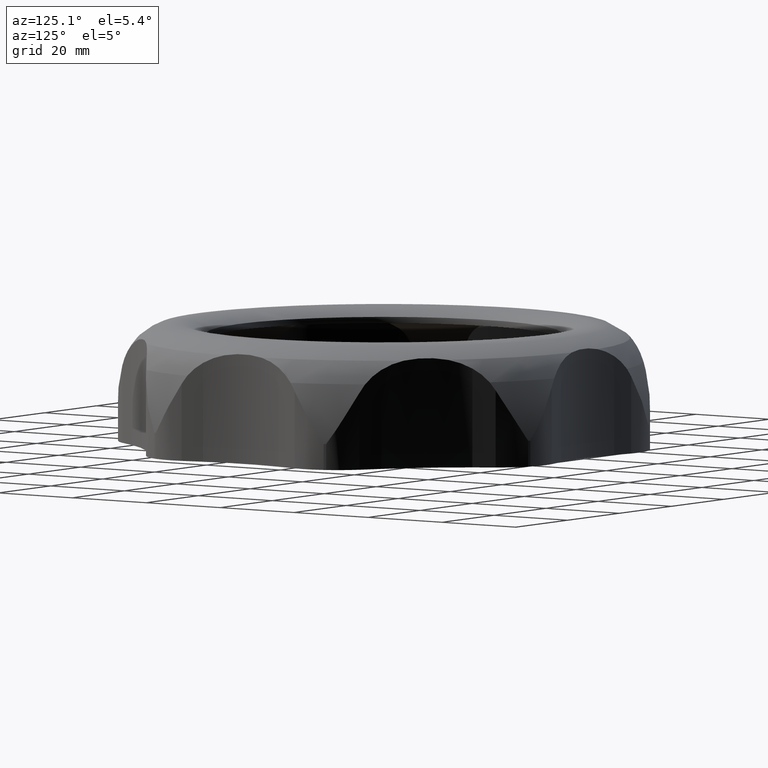
[diagram: clean part render]
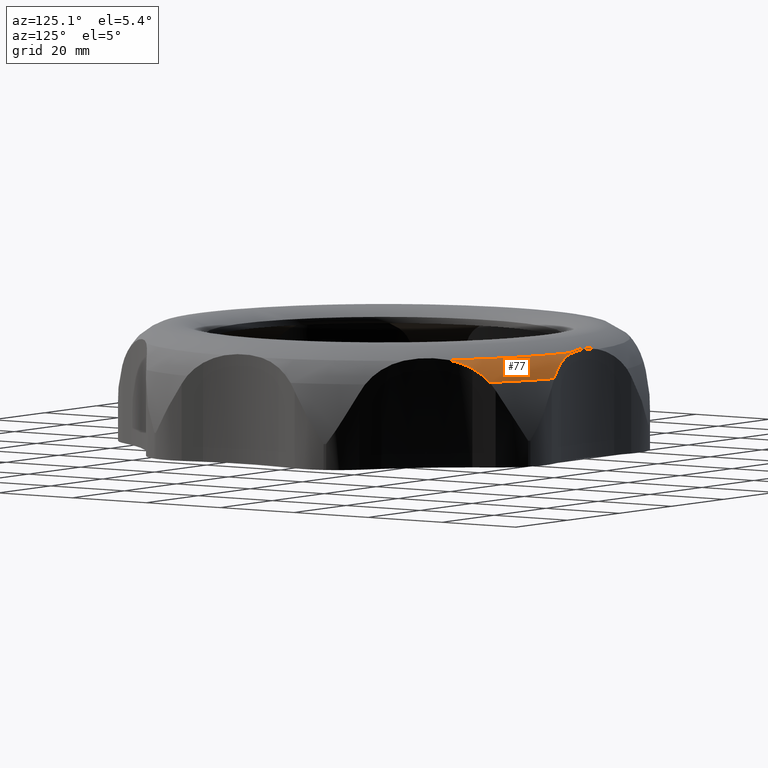
[diagram: same view with one face highlighted and labeled with its STEP entity id]
A machine part, auxiliary view. The second image highlights one B-rep face of the part: STEP entity #77.
In plain terms, the highlighted toroidal blend (fillet) surface has major radius 43.5661 mm and minor (blend) radius 15 mm.
Its self-contained STEP definition (entity closure, byte-faithful):
#77 = ADVANCED_FACE( '', ( #2362 ), #2363, .T. );
#2362 = FACE_OUTER_BOUND( '', #6954, .T. );
#2363 = TOROIDAL_SURFACE( '', #6955, 43.5661318068300, 15.0000000000000 );
#6954 = EDGE_LOOP( '', ( #11979, #11980, #11981, #11982, #11983, #11984 ) );
#6955 = AXIS2_PLACEMENT_3D( '', #11985, #11986, #11987 );
#11979 = ORIENTED_EDGE( '', *, *, #32259, .F. );
#11980 = ORIENTED_EDGE( '', *, *, #32260, .F. );
#11981 = ORIENTED_EDGE( '', *, *, #32261, .T. );
#11982 = ORIENTED_EDGE( '', *, *, #32262, .F. );
#11983 = ORIENTED_EDGE( '', *, *, #32263, .F. );
#11984 = ORIENTED_EDGE( '', *, *, #32256, .F. );
#11985 = CARTESIAN_POINT( '', ( 0.000000000000000, 0.000000000000000, 13.6113464164308 ) );
#11986 = DIRECTION( '', ( 2.34318281388423E-017, -5.65694372839885E-017, 1.00000000000000 ) );
#11987 = DIRECTION( '', ( 0.382683432365090, -0.923879532511287, -6.12303176911189E-017 ) );
#32256 = EDGE_CURVE( '', #39080, #39082, #39083, .T. );
#32259 = EDGE_CURVE( '', #39087, #39080, #39088, .T. );
#32260 = EDGE_CURVE( '', #39089, #39087, #39090, .T. );
#32261 = EDGE_CURVE( '', #39089, #39091, #39092, .T. );
#32262 = EDGE_CURVE( '', #39093, #39091, #39094, .T. );
#32263 = EDGE_CURVE( '', #39082, #39093, #39095, .T. );
#39080 = VERTEX_POINT( '', #50396 );
#39082 = VERTEX_POINT( '', #50407 );
#39083 = CIRCLE( '', #50408, 54.4903069228964 );
#39087 = VERTEX_POINT( '', #50421 );
#39088 = B_SPLINE_CURVE_WITH_KNOTS( '', 3, ( #50422, #50423, #50424, #50425, #50426, #50427 ), .UNSPECIFIED., .F., .F., ( 4, 2, 4 ), ( -0.0157093972413115, -0.0128993333692689, -0.0100892694972263 ), .UNSPECIFIED. );
#39089 = VERTEX_POINT( '', #50428 );
#39090 = B_SPLINE_CURVE_WITH_KNOTS( '', 3, ( #50429, #50430, #50431, #50432, #50433, #50434 ), .UNSPECIFIED., .F., .F., ( 4, 2, 4 ), ( 2.59076700372244E-007, 0.00246112304105133, 0.00492198700540229 ), .UNSPECIFIED. );
#39091 = VERTEX_POINT( '', #50435 );
#39092 = CIRCLE( '', #50436, 57.6009145856352 );
#39093 = VERTEX_POINT( '', #50437 );
#39094 = B_SPLINE_CURVE_WITH_KNOTS( '', 3, ( #50438, #50439, #50440, #50441, #50442, #50443 ), .UNSPECIFIED., .F., .F., ( 4, 2, 4 ), ( 2.31321097570903E-007, 0.00246109528543580, 0.00492195924977404 ), .UNSPECIFIED. );
#39095 = B_SPLINE_CURVE_WITH_KNOTS( '', 3, ( #50444, #50445, #50446, #50447, #50448, #50449 ), .UNSPECIFIED., .F., .F., ( 4, 2, 4 ), ( 9.82227130871184E-007, 0.00280804585765171, 0.00561510948817255 ), .UNSPECIFIED. );
#50396 = CARTESIAN_POINT( '', ( 34.8035685836430, 41.9273796271016, 23.8905680812026 ) );
#50407 = CARTESIAN_POINT( '', ( 5.03729506655510, 54.2569738036059, 23.8905679243228 ) );
#50408 = AXIS2_PLACEMENT_3D( '', #78958, #78959, #78960 );
#50421 = CARTESIAN_POINT( '', ( 31.6942200521727, 46.1907495298074, 21.9737858870486 ) );
#50422 = CARTESIAN_POINT( '', ( 31.6942200521724, 46.1907495298074, 21.9737858870490 ) );
#50423 = CARTESIAN_POINT( '', ( 32.1439683151395, 45.4994810980960, 22.4436530515074 ) );
#50424 = CARTESIAN_POINT( '', ( 32.6285460116443, 44.7926623947188, 22.8245210050163 ) );
#50425 = CARTESIAN_POINT( '', ( 33.6651073941389, 43.3667429305472, 23.4528223135742 ) );
#50426 = CARTESIAN_POINT( '', ( 34.2171336616087, 42.6474644589403, 23.6998011140335 ) );
#50427 = CARTESIAN_POINT( '', ( 34.8035685836431, 41.9273796271017, 23.8905680812027 ) );
#50428 = CARTESIAN_POINT( '', ( 29.5957097293313, 49.4161848660823, 18.9051987331990 ) );
#50429 = CARTESIAN_POINT( '', ( 29.5957097293311, 49.4161848660822, 18.9051987331991 ) );
#50430 = CARTESIAN_POINT( '', ( 29.8924916906819, 48.9600274600926, 19.5384302350292 ) );
#50431 = CARTESIAN_POINT( '', ( 30.2216072920193, 48.4541728647072, 20.0973127606971 ) );
#50432 = CARTESIAN_POINT( '', ( 30.9256173723699, 47.3721009942279, 21.1098124386796 ) );
#50433 = CARTESIAN_POINT( '', ( 31.3008000929215, 46.7954406884601, 21.5627667994477 ) );
#50434 = CARTESIAN_POINT( '', ( 31.6942200521723, 46.1907495298073, 21.9737858870488 ) );
#50435 = CARTESIAN_POINT( '', ( 14.0151923755360, 55.8698464628137, 18.9051987331990 ) );
#50436 = AXIS2_PLACEMENT_3D( '', #78964, #78965, #78966 );
#50437 = CARTESIAN_POINT( '', ( 10.2505942973280, 55.0729901439308, 21.9737858870358 ) );
#50438 = CARTESIAN_POINT( '', ( 10.2505942973283, 55.0729901439304, 21.9737858870361 ) );
#50439 = CARTESIAN_POINT( '', ( 10.9563654371713, 55.2223814416960, 21.5627667994362 ) );
#50440 = CARTESIAN_POINT( '', ( 11.6294200957028, 55.3648476084587, 21.1098124386698 ) );
#50441 = CARTESIAN_POINT( '', ( 12.8923707548822, 55.6321776639645, 20.0973127606914 ) );
#50442 = CARTESIAN_POINT( '', ( 13.4827838430702, 55.7571510051552, 19.5384302350260 ) );
#50443 = CARTESIAN_POINT( '', ( 14.0151923755362, 55.8698464628134, 18.9051987331992 ) );
#50444 = CARTESIAN_POINT( '', ( 5.03729512147361, 54.2569738092235, 23.8905680760915 ) );
#50445 = CARTESIAN_POINT( '', ( 5.96008608963235, 54.3513703385598, 23.7000195778021 ) );
#50446 = CARTESIAN_POINT( '', ( 6.85850732092182, 54.4695221057105, 23.4532991134236 ) );
#50447 = CARTESIAN_POINT( '', ( 8.59974134655992, 54.7447814812383, 22.8251888896916 ) );
#50448 = CARTESIAN_POINT( '', ( 9.44271260280340, 54.9019850008003, 22.4442709752276 ) );
#50449 = CARTESIAN_POINT( '', ( 10.2505942973281, 55.0729901439306, 21.9737858870359 ) );
#78958 = CARTESIAN_POINT( '', ( 0.000000000000000, 0.000000000000000, 23.8905680812026 ) );
#78959 = DIRECTION( '', ( 2.34318281388423E-017, -5.65694372839885E-017, 1.00000000000000 ) );
#78960 = DIRECTION( '', ( 0.382683432365090, -0.923879532511287, -6.12303176911189E-017 ) );
#78964 = CARTESIAN_POINT( '', ( 0.000000000000000, 0.000000000000000, 18.9051987331990 ) );
#78965 = DIRECTION( '', ( 2.34318281388423E-017, -5.65694372839885E-017, 1.00000000000000 ) );
#78966 = DIRECTION( '', ( 0.382683432365090, -0.923879532511287, -6.12303176911189E-017 ) );